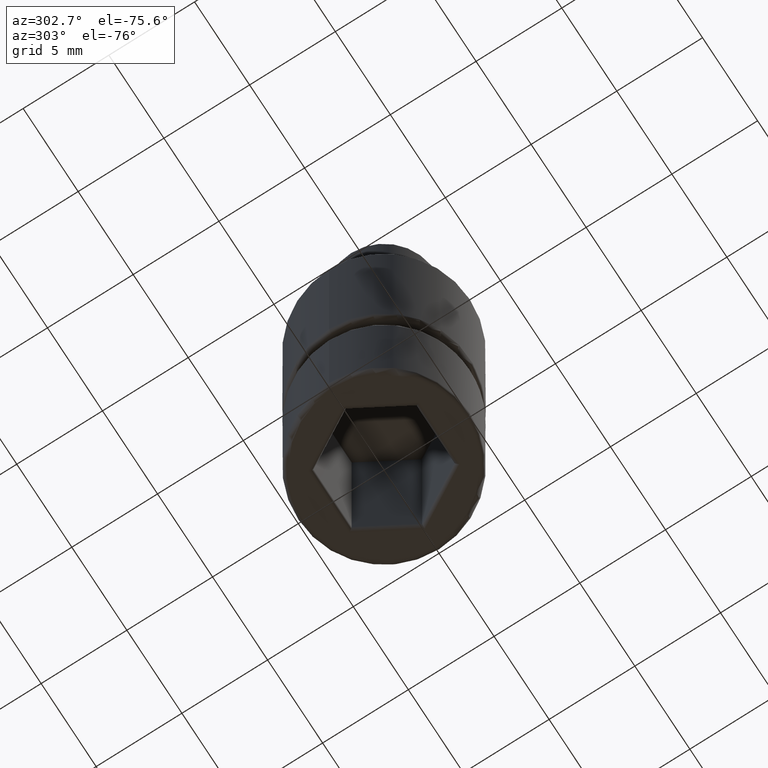
[diagram: clean part render]
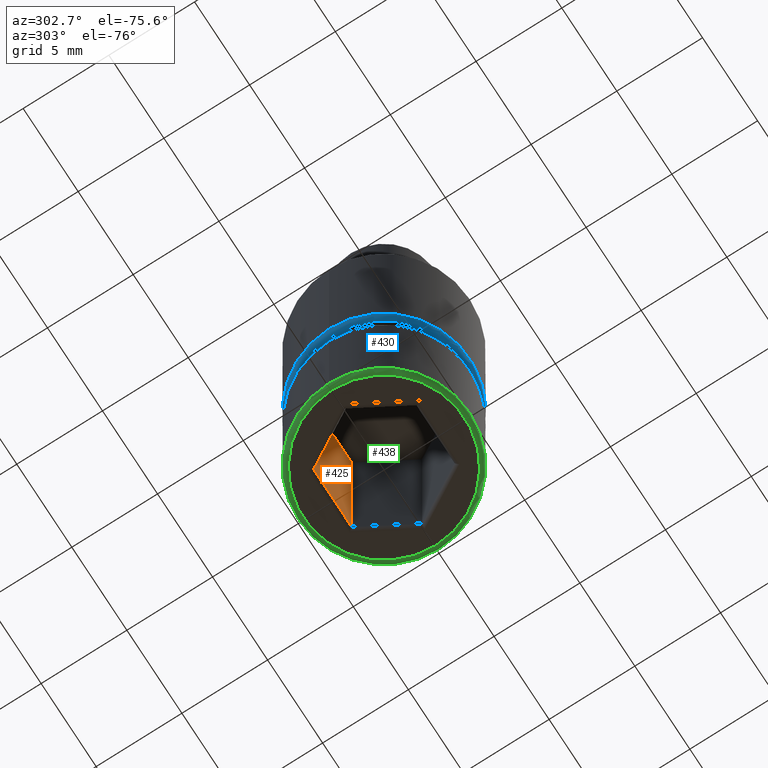
[diagram: same view with three faces highlighted in distinct colors, each labeled with its STEP entity id]
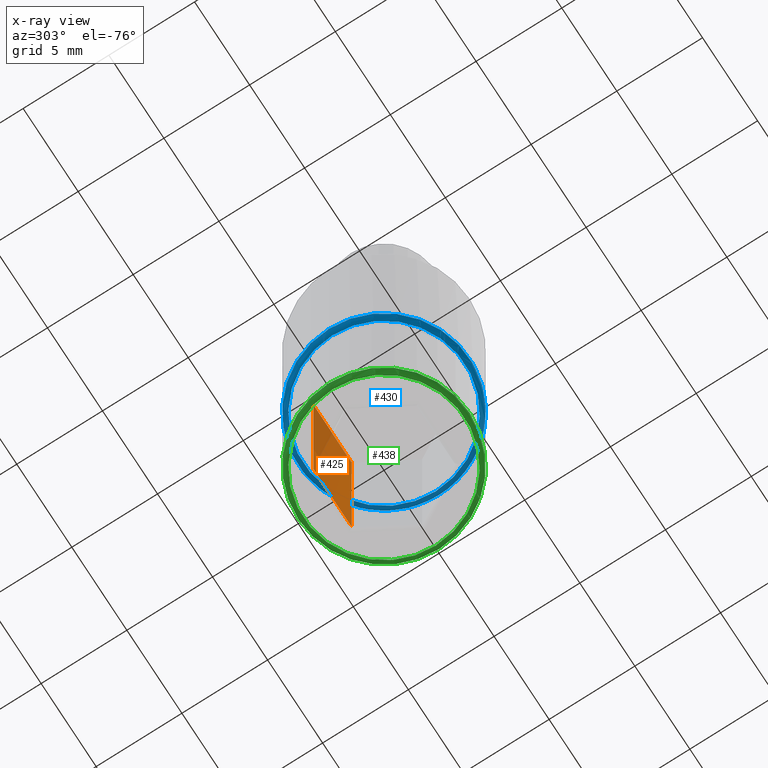
[diagram: x-ray of the same camera — body ghosted, the three highlighted faces saturated]
A machine part, auxiliary view with three faces highlighted in distinct colors.
The next image is the same camera in x-ray (body ghosted, the three faces saturated) — at least one of them is partly hidden behind the body in this view.
Their STEP definitions:

[orange] entity #425 — the highlighted planar face has unit normal (-0, 1, 0).
#52=PLANE('',#478);
#70=FACE_OUTER_BOUND('',#97,.T.);
#97=EDGE_LOOP('',(#317,#318,#319,#320));
#127=LINE('',#680,#156);
#141=LINE('',#717,#170);
#143=LINE('',#721,#172);
#144=LINE('',#722,#173);
#156=VECTOR('',#530,10.);
#170=VECTOR('',#568,10.);
#172=VECTOR('',#572,10.);
#173=VECTOR('',#573,10.);
#186=VERTEX_POINT('',#677);
#187=VERTEX_POINT('',#679);
#198=VERTEX_POINT('',#716);
#199=VERTEX_POINT('',#720);
#226=EDGE_CURVE('',#186,#187,#127,.T.);
#245=EDGE_CURVE('',#187,#198,#141,.T.);
#247=EDGE_CURVE('',#186,#199,#143,.T.);
#248=EDGE_CURVE('',#199,#198,#144,.T.);
#317=ORIENTED_EDGE('',*,*,#226,.F.);
#318=ORIENTED_EDGE('',*,*,#247,.T.);
#319=ORIENTED_EDGE('',*,*,#248,.T.);
#320=ORIENTED_EDGE('',*,*,#245,.F.);
#425=ADVANCED_FACE('',(#70),#52,.F.);
#478=AXIS2_PLACEMENT_3D('',#719,#570,#571);
#530=DIRECTION('',(-1.,-1.60246890531964E-16,0.));
#568=DIRECTION('',(0.,0.,1.));
#570=DIRECTION('center_axis',(-1.60246890531964E-16,1.,0.));
#571=DIRECTION('ref_axis',(-1.,-1.60246890531964E-16,0.));
#572=DIRECTION('',(0.,0.,1.));
#573=DIRECTION('',(-1.,-1.60246890531964E-16,0.));
#677=CARTESIAN_POINT('',(1.73205080756888,3.,-11.2));
#679=CARTESIAN_POINT('',(-1.73205080756888,3.,-11.2));
#680=CARTESIAN_POINT('',(0.866025403784438,3.,-11.2));
#716=CARTESIAN_POINT('',(-1.73205080756888,3.,1.5));
#717=CARTESIAN_POINT('',(-1.73205080756888,3.,-11.5));
#719=CARTESIAN_POINT('Origin',(1.73205080756888,3.,-11.5));
#720=CARTESIAN_POINT('',(1.73205080756888,3.,1.5));
#721=CARTESIAN_POINT('',(1.73205080756888,3.,-11.5));
#722=CARTESIAN_POINT('',(1.73205080756888,3.,1.5));

[blue] entity #430 — the highlighted toroidal blend (fillet) surface has major radius 4.7 mm and minor (blend) radius 0.3 mm.
#17=TOROIDAL_SURFACE('',#493,4.7,0.3);
#34=CIRCLE('',#494,5.);
#35=CIRCLE('',#495,0.3);
#36=CIRCLE('',#496,4.7);
#75=FACE_OUTER_BOUND('',#104,.T.);
#104=EDGE_LOOP('',(#344,#345,#346,#347));
#209=VERTEX_POINT('',#748);
#210=VERTEX_POINT('',#750);
#260=EDGE_CURVE('',#209,#209,#34,.T.);
#261=EDGE_CURVE('',#209,#210,#35,.T.);
#262=EDGE_CURVE('',#210,#210,#36,.T.);
#344=ORIENTED_EDGE('',*,*,#260,.T.);
#345=ORIENTED_EDGE('',*,*,#261,.T.);
#346=ORIENTED_EDGE('',*,*,#262,.T.);
#347=ORIENTED_EDGE('',*,*,#261,.F.);
#430=ADVANCED_FACE('',(#75),#17,.T.);
#493=AXIS2_PLACEMENT_3D('',#747,#603,#604);
#494=AXIS2_PLACEMENT_3D('',#749,#605,#606);
#495=AXIS2_PLACEMENT_3D('',#751,#607,#608);
#496=AXIS2_PLACEMENT_3D('',#752,#609,#610);
#603=DIRECTION('center_axis',(0.,0.,1.));
#604=DIRECTION('ref_axis',(1.,0.,0.));
#605=DIRECTION('center_axis',(0.,0.,-1.));
#606=DIRECTION('ref_axis',(1.,0.,0.));
#607=DIRECTION('center_axis',(1.22464679914735E-16,-1.,0.));
#608=DIRECTION('ref_axis',(-1.,-1.22464679914735E-16,0.));
#609=DIRECTION('center_axis',(0.,0.,1.));
#610=DIRECTION('ref_axis',(1.,0.,0.));
#747=CARTESIAN_POINT('Origin',(0.,0.,-0.500000000000001));
#748=CARTESIAN_POINT('',(-5.,6.12323399573677E-16,-0.500000000000001));
#749=CARTESIAN_POINT('Origin',(0.,0.,-0.500000000000001));
#750=CARTESIAN_POINT('',(-4.7,-5.75583995599256E-16,-0.800000000000001));
#751=CARTESIAN_POINT('Origin',(-4.7,-5.75583995599256E-16,-0.500000000000001));
#752=CARTESIAN_POINT('Origin',(0.,0.,-0.800000000000001));

[green] entity #438 — the highlighted toroidal blend (fillet) surface has major radius 4.7 mm and minor (blend) radius 0.3 mm.
#18=TOROIDAL_SURFACE('',#508,4.7,0.3);
#24=CIRCLE('',#480,4.7);
#32=CIRCLE('',#491,5.);
#33=CIRCLE('',#492,5.);
#41=CIRCLE('',#509,0.3);
#83=FACE_OUTER_BOUND('',#113,.T.);
#113=EDGE_LOOP('',(#380,#381,#382,#383,#384));
#200=VERTEX_POINT('',#724);
#207=VERTEX_POINT('',#742);
#208=VERTEX_POINT('',#744);
#249=EDGE_CURVE('',#200,#200,#24,.T.);
#258=EDGE_CURVE('',#208,#207,#32,.T.);
#259=EDGE_CURVE('',#207,#208,#33,.T.);
#274=EDGE_CURVE('',#200,#208,#41,.T.);
#380=ORIENTED_EDGE('',*,*,#249,.T.);
#381=ORIENTED_EDGE('',*,*,#274,.T.);
#382=ORIENTED_EDGE('',*,*,#258,.T.);
#383=ORIENTED_EDGE('',*,*,#259,.T.);
#384=ORIENTED_EDGE('',*,*,#274,.F.);
#438=ADVANCED_FACE('',(#83),#18,.T.);
#480=AXIS2_PLACEMENT_3D('',#725,#576,#577);
#491=AXIS2_PLACEMENT_3D('',#745,#599,#600);
#492=AXIS2_PLACEMENT_3D('',#746,#601,#602);
#508=AXIS2_PLACEMENT_3D('',#777,#640,#641);
#509=AXIS2_PLACEMENT_3D('',#778,#642,#643);
#576=DIRECTION('center_axis',(0.,0.,1.));
#577=DIRECTION('ref_axis',(-1.,1.22464679914735E-16,0.));
#599=DIRECTION('center_axis',(0.,0.,-1.));
#600=DIRECTION('ref_axis',(-1.,1.22464679914735E-16,0.));
#601=DIRECTION('center_axis',(0.,0.,-1.));
#602=DIRECTION('ref_axis',(-1.,1.22464679914735E-16,0.));
#640=DIRECTION('center_axis',(0.,0.,-1.));
#641=DIRECTION('ref_axis',(-1.,0.,0.));
#642=DIRECTION('center_axis',(-1.22464679914735E-16,-1.,0.));
#643=DIRECTION('ref_axis',(1.,-1.22464679914735E-16,0.));
#724=CARTESIAN_POINT('',(4.7,0.,-11.5));
#725=CARTESIAN_POINT('Origin',(0.,0.,-11.5));
#742=CARTESIAN_POINT('',(-5.,-6.12323399573677E-16,-11.2));
#744=CARTESIAN_POINT('',(5.,-1.22464679914735E-15,-11.2));
#745=CARTESIAN_POINT('Origin',(0.,0.,-11.2));
#746=CARTESIAN_POINT('Origin',(0.,0.,-11.2));
#777=CARTESIAN_POINT('Origin',(0.,0.,-11.2));
#778=CARTESIAN_POINT('Origin',(4.7,-5.75583995599256E-16,-11.2));